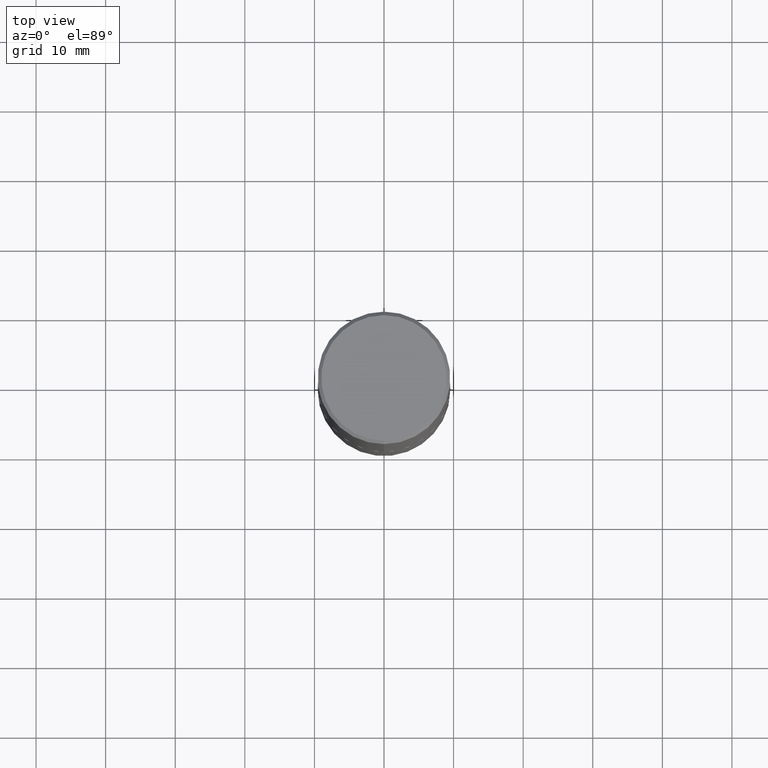
[diagram: clean part render]
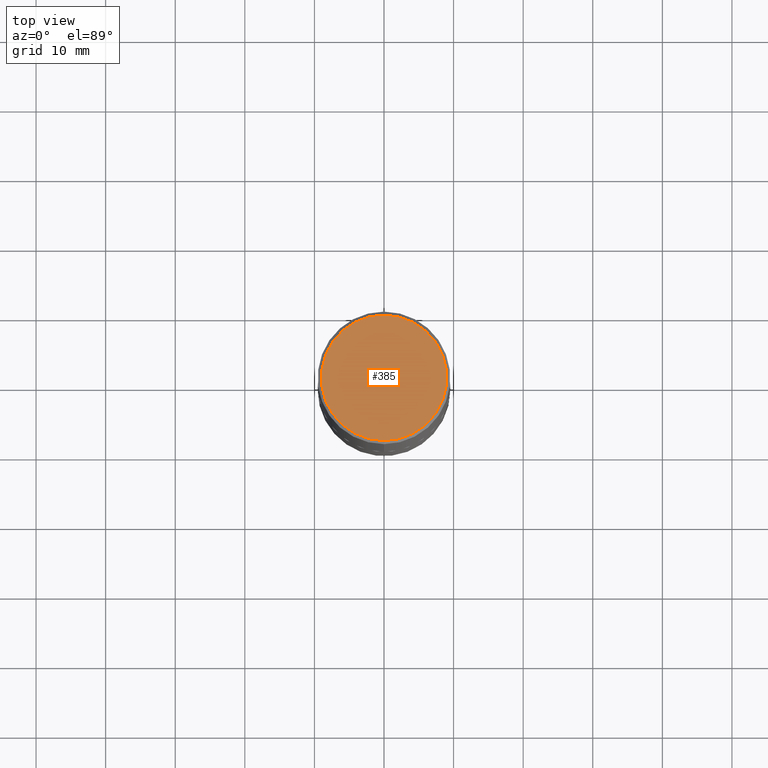
[diagram: same view with one face highlighted and labeled with its STEP entity id]
A machine part, top view. The second image highlights one B-rep face of the part: STEP entity #385.
In plain terms, the highlighted planar face has unit normal (0, -0, -1).
Its self-contained STEP definition (entity closure, byte-faithful):
#37 = DIRECTION ( 'NONE',  ( 2.444395862887114472E-29, -3.493017854714053009E-15, -1.000000000000000000 ) ) ;
#41 = AXIS2_PLACEMENT_3D ( 'NONE', #225, #37, #358 ) ;
#43 = EDGE_LOOP ( 'NONE', ( #95, #130 ) ) ;
#89 = DIRECTION ( 'NONE',  ( -2.444395862887114472E-29, 3.493017854714053009E-15, 1.000000000000000000 ) ) ;
#95 = ORIENTED_EDGE ( 'NONE', *, *, #321, .T. ) ;
#111 = FACE_OUTER_BOUND ( 'NONE', #43, .T. ) ;
#130 = ORIENTED_EDGE ( 'NONE', *, *, #269, .T. ) ;
#141 = CIRCLE ( 'NONE', #163, 0.3549999999999997602 ) ;
#146 = CARTESIAN_POINT ( 'NONE',  ( -5.647657784886327300E-45, 8.070447908802484547E-31, 2.310451375995943946E-16 ) ) ;
#148 = VERTEX_POINT ( 'NONE', #304 ) ;
#163 = AXIS2_PLACEMENT_3D ( 'NONE', #146, #89, #337 ) ;
#225 = CARTESIAN_POINT ( 'NONE',  ( 2.478951750578623026E-15, 0.3549999999999997602, -1.124498769623690920E-15 ) ) ;
#241 = PLANE ( 'NONE',  #41 ) ;
#269 = EDGE_CURVE ( 'NONE', #344, #148, #364, .T. ) ;
#304 = CARTESIAN_POINT ( 'NONE',  ( 2.548781377355486718E-15, 0.3549999999999997602, -1.008976200823893402E-15 ) ) ;
#319 = AXIS2_PLACEMENT_3D ( 'NONE', #415, #373, #411 ) ;
#321 = EDGE_CURVE ( 'NONE', #148, #344, #141, .T. ) ;
#337 = DIRECTION ( 'NONE',  ( -6.982962677686266711E-15, -1.000000000000000000, 3.493017854714052220E-15 ) ) ;
#344 = VERTEX_POINT ( 'NONE', #349 ) ;
#349 = CARTESIAN_POINT ( 'NONE',  ( -2.504081769186607821E-15, -0.3549999999999997602, 1.471066476023082684E-15 ) ) ;
#358 = DIRECTION ( 'NONE',  ( 6.982962677686265922E-15, 1.000000000000000000, -3.493017854714053009E-15 ) ) ;
#364 = CIRCLE ( 'NONE', #319, 0.3549999999999997602 ) ;
#373 = DIRECTION ( 'NONE',  ( -2.444395862887114472E-29, 3.493017854714053009E-15, 1.000000000000000000 ) ) ;
#385 = ADVANCED_FACE ( 'NONE', ( #111 ), #241, .F. ) ;
#411 = DIRECTION ( 'NONE',  ( -6.982962677686266711E-15, -1.000000000000000000, 3.493017854714052220E-15 ) ) ;
#415 = CARTESIAN_POINT ( 'NONE',  ( -5.647657784886327300E-45, 8.070447908802484547E-31, 2.310451375995943946E-16 ) ) ;